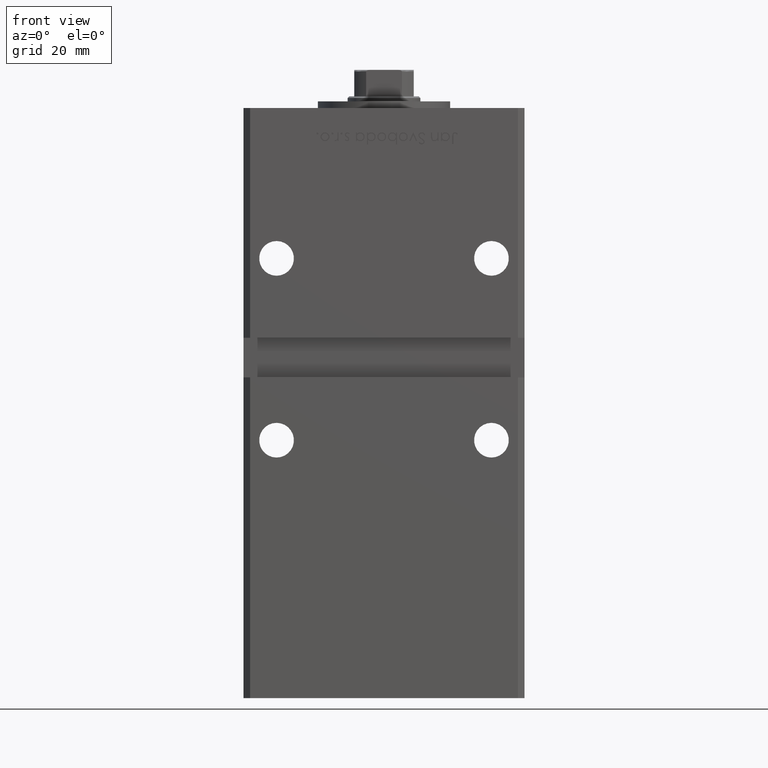
[diagram: clean part render]
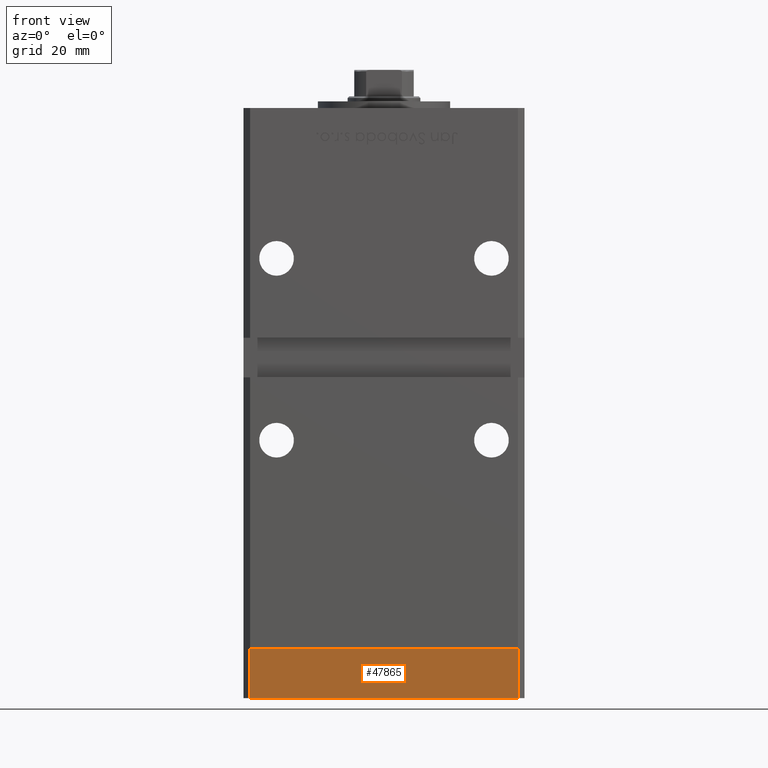
[diagram: same view with one face highlighted and labeled with its STEP entity id]
A machine part, front view. The second image highlights one B-rep face of the part: STEP entity #47865.
In plain terms, the highlighted planar face has unit normal (0, -1, -0).
Its self-contained STEP definition (entity closure, byte-faithful):
#641 = LINE ( 'NONE', #8443, #15193 ) ;
#1966 = DIRECTION ( 'NONE',  ( 0.000000000000000000, 0.000000000000000000, 1.000000000000000000 ) ) ;
#2163 = CARTESIAN_POINT ( 'NONE',  ( -40.49999999999999289, -37.50000000000002132, -15.00000000000000000 ) ) ;
#5214 = EDGE_CURVE ( 'NONE', #28702, #46894, #641, .T. ) ;
#6956 = ORIENTED_EDGE ( 'NONE', *, *, #26593, .T. ) ;
#7942 = VECTOR ( 'NONE', #27424, 1000.000000000000000 ) ;
#8443 = CARTESIAN_POINT ( 'NONE',  ( 40.50000000000000000, -37.50000000000000711, -15.00000000000000000 ) ) ;
#10134 = DIRECTION ( 'NONE',  ( 1.000000000000000000, 1.713307136767217096E-16, 0.000000000000000000 ) ) ;
#10296 = LINE ( 'NONE', #42827, #27795 ) ;
#15193 = VECTOR ( 'NONE', #24854, 1000.000000000000000 ) ;
#17855 = CARTESIAN_POINT ( 'NONE',  ( -40.49999999999999289, -37.50000000000002132, 0.000000000000000000 ) ) ;
#18598 = CARTESIAN_POINT ( 'NONE',  ( -40.49999999999999289, -37.50000000000002132, -15.00000000000000000 ) ) ;
#18742 = CARTESIAN_POINT ( 'NONE',  ( -40.49999999999999289, -37.50000000000002132, -15.00000000000000000 ) ) ;
#20893 = VECTOR ( 'NONE', #33714, 1000.000000000000000 ) ;
#20956 = ORIENTED_EDGE ( 'NONE', *, *, #43970, .F. ) ;
#21619 = LINE ( 'NONE', #17855, #20893 ) ;
#21779 = EDGE_LOOP ( 'NONE', ( #20956, #52605, #6956, #45013 ) ) ;
#21929 = VERTEX_POINT ( 'NONE', #49856 ) ;
#24854 = DIRECTION ( 'NONE',  ( 0.000000000000000000, 0.000000000000000000, 1.000000000000000000 ) ) ;
#26593 = EDGE_CURVE ( 'NONE', #45247, #28702, #39253, .T. ) ;
#27424 = DIRECTION ( 'NONE',  ( 1.000000000000000000, 1.713307136767217096E-16, 0.000000000000000000 ) ) ;
#27795 = VECTOR ( 'NONE', #1966, 1000.000000000000000 ) ;
#28702 = VERTEX_POINT ( 'NONE', #29542 ) ;
#29542 = CARTESIAN_POINT ( 'NONE',  ( 40.50000000000000000, -37.50000000000000711, -15.00000000000000000 ) ) ;
#30323 = AXIS2_PLACEMENT_3D ( 'NONE', #18742, #38623, #10134 ) ;
#33714 = DIRECTION ( 'NONE',  ( 1.000000000000000000, 1.713307136767217096E-16, 0.000000000000000000 ) ) ;
#34330 = FACE_OUTER_BOUND ( 'NONE', #21779, .T. ) ;
#38623 = DIRECTION ( 'NONE',  ( 1.713307136767217096E-16, -1.000000000000000000, 0.000000000000000000 ) ) ;
#39253 = LINE ( 'NONE', #2163, #7942 ) ;
#39676 = CARTESIAN_POINT ( 'NONE',  ( 40.50000000000000000, -37.50000000000000711, 0.000000000000000000 ) ) ;
#42827 = CARTESIAN_POINT ( 'NONE',  ( -40.49999999999999289, -37.50000000000002132, -15.00000000000000000 ) ) ;
#42928 = PLANE ( 'NONE',  #30323 ) ;
#43970 = EDGE_CURVE ( 'NONE', #21929, #46894, #21619, .T. ) ;
#45013 = ORIENTED_EDGE ( 'NONE', *, *, #5214, .T. ) ;
#45247 = VERTEX_POINT ( 'NONE', #18598 ) ;
#46894 = VERTEX_POINT ( 'NONE', #39676 ) ;
#47865 = ADVANCED_FACE ( 'NONE', ( #34330 ), #42928, .T. ) ;
#49856 = CARTESIAN_POINT ( 'NONE',  ( -40.49999999999999289, -37.50000000000002132, 0.000000000000000000 ) ) ;
#50479 = EDGE_CURVE ( 'NONE', #45247, #21929, #10296, .T. ) ;
#52605 = ORIENTED_EDGE ( 'NONE', *, *, #50479, .F. ) ;